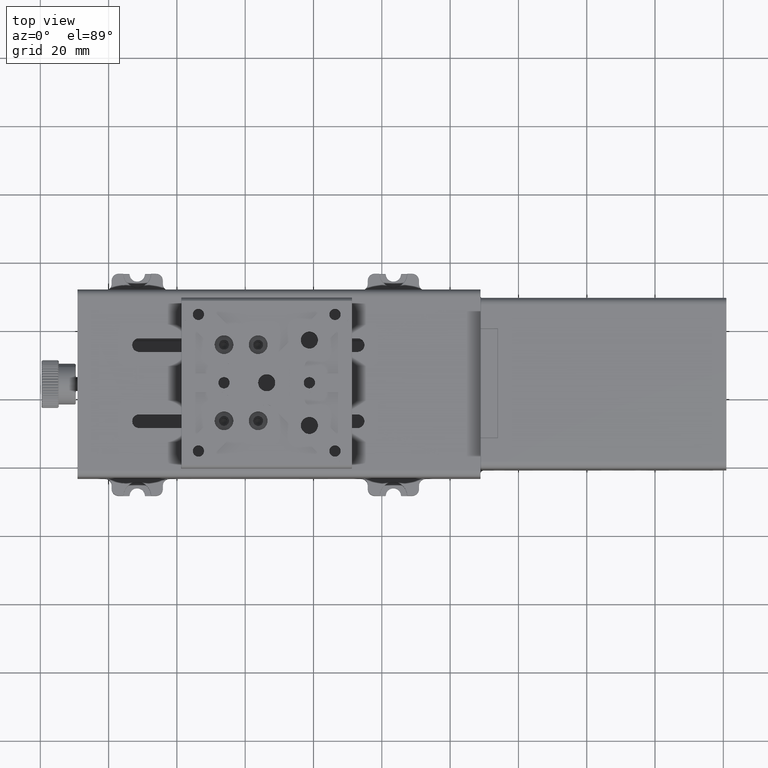
[diagram: clean part render]
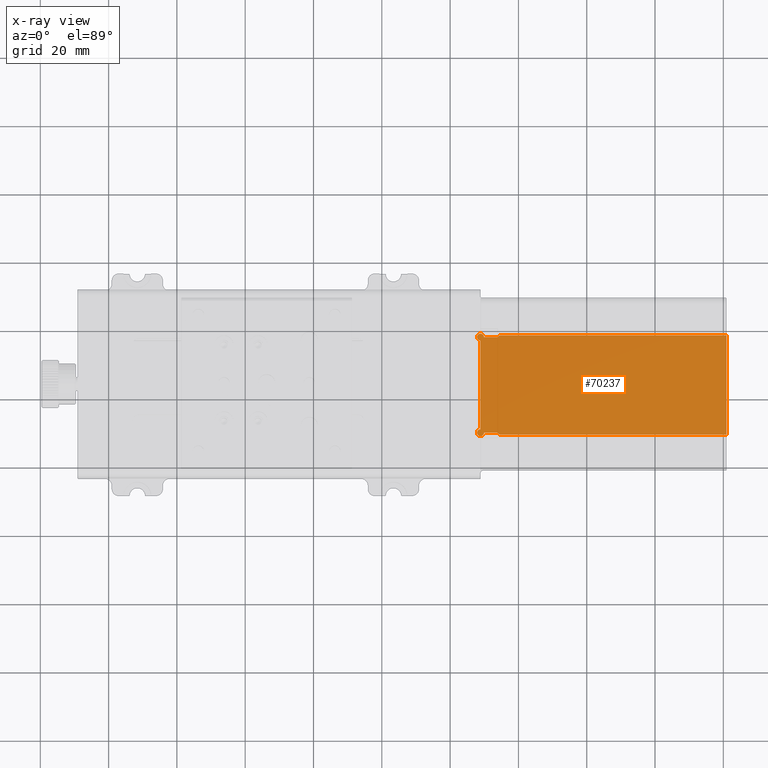
[diagram: x-ray — body ghosted, one internal face saturated and labeled with its STEP entity id]
A machine part, top view, then the same camera in x-ray: the body is ghosted and one INTERNAL B-rep face — a face not visible from any outside direction — is saturated and labeled: STEP entity #70237.
In plain terms, the highlighted planar face has unit normal (0, 0, 1).
Its self-contained STEP definition (entity closure, byte-faithful):
#2690 = CIRCLE ( 'NONE', #51129, 1.000000000000000888 ) ;
#5973 = CARTESIAN_POINT ( 'NONE',  ( 33.88988764044950130, 38.75842696629214856, -3.500000000000000000 ) ) ;
#6095 = VERTEX_POINT ( 'NONE', #48774 ) ;
#6362 = EDGE_CURVE ( 'NONE', #65976, #82180, #25632, .T. ) ;
#7184 = VERTEX_POINT ( 'NONE', #21593 ) ;
#7571 = PLANE ( 'NONE',  #56881 ) ;
#7623 = CARTESIAN_POINT ( 'NONE',  ( 33.88988764044950130, 9.758426966292130800, -3.500000000000000000 ) ) ;
#7977 = CARTESIAN_POINT ( 'NONE',  ( 28.88988764044950130, 10.25842696629212014, -3.500000000000000000 ) ) ;
#8075 = CIRCLE ( 'NONE', #78667, 1.000000000000000888 ) ;
#8946 = DIRECTION ( 'NONE',  ( 1.000000000000000000, 0.000000000000000000, 0.000000000000000000 ) ) ;
#9058 = AXIS2_PLACEMENT_3D ( 'NONE', #67338, #60853, #41335 ) ;
#9267 = DIRECTION ( 'NONE',  ( 1.000000000000000000, 0.000000000000000000, 0.000000000000000000 ) ) ;
#9828 = DIRECTION ( 'NONE',  ( 1.000000000000000000, 3.469446951953610245E-16, 0.000000000000000000 ) ) ;
#11793 = VERTEX_POINT ( 'NONE', #18432 ) ;
#12052 = DIRECTION ( 'NONE',  ( 1.000000000000000000, 0.000000000000000000, 0.000000000000000000 ) ) ;
#13064 = CARTESIAN_POINT ( 'NONE',  ( 34.75591304423389971, 10.75842696629211837, -3.500000000000000000 ) ) ;
#14616 = EDGE_CURVE ( 'NONE', #65366, #56203, #46645, .T. ) ;
#18432 = CARTESIAN_POINT ( 'NONE',  ( 29.88988764044950130, 38.25842696629215567, -3.500000000000000000 ) ) ;
#18827 = CIRCLE ( 'NONE', #67280, 1.000000000000000888 ) ;
#21593 = CARTESIAN_POINT ( 'NONE',  ( 29.88988764044950130, 10.25842696629212014, -3.500000000000000000 ) ) ;
#22815 = LINE ( 'NONE', #81337, #59177 ) ;
#25632 = CIRCLE ( 'NONE', #9058, 1.000000000000000888 ) ;
#26505 = LINE ( 'NONE', #60302, #34410 ) ;
#30676 = ORIENTED_EDGE ( 'NONE', *, *, #82053, .F. ) ;
#30973 = ORIENTED_EDGE ( 'NONE', *, *, #55931, .F. ) ;
#32018 = VECTOR ( 'NONE', #80728, 1000.000000000000000 ) ;
#32311 = ORIENTED_EDGE ( 'NONE', *, *, #14616, .T. ) ;
#32473 = ORIENTED_EDGE ( 'NONE', *, *, #45501, .F. ) ;
#32590 = DIRECTION ( 'NONE',  ( 1.000000000000000000, 0.000000000000000000, 0.000000000000000000 ) ) ;
#34410 = VECTOR ( 'NONE', #79384, 1000.000000000000000 ) ;
#40659 = CARTESIAN_POINT ( 'NONE',  ( 33.88988764044950130, 38.25842696629215567, -3.500000000000000000 ) ) ;
#41335 = DIRECTION ( 'NONE',  ( 1.000000000000000000, 0.000000000000000000, 0.000000000000000000 ) ) ;
#42204 = DIRECTION ( 'NONE',  ( 1.000000000000000000, 0.000000000000000000, 0.000000000000000000 ) ) ;
#42645 = ORIENTED_EDGE ( 'NONE', *, *, #6362, .T. ) ;
#43813 = CARTESIAN_POINT ( 'NONE',  ( 33.88988764044950130, 10.25842696629212014, -3.500000000000000000 ) ) ;
#45501 = EDGE_CURVE ( 'NONE', #7184, #50708, #18827, .T. ) ;
#45884 = CARTESIAN_POINT ( 'NONE',  ( 28.88988764044950130, 38.25842696629215567, -3.500000000000000000 ) ) ;
#46581 = EDGE_LOOP ( 'NONE', ( #30676, #58756, #32473, #67309, #50746, #32311, #30973, #65759, #42645, #60150 ) ) ;
#46645 = LINE ( 'NONE', #7623, #65405 ) ;
#47431 = LINE ( 'NONE', #7977, #81666 ) ;
#47469 = CARTESIAN_POINT ( 'NONE',  ( 34.75591304423389971, 38.75842696629214856, -3.500000000000000000 ) ) ;
#48774 = CARTESIAN_POINT ( 'NONE',  ( 28.88988764044950130, 37.25842696629215567, -3.500000000000000000 ) ) ;
#50552 = EDGE_CURVE ( 'NONE', #7184, #70747, #47431, .T. ) ;
#50708 = VERTEX_POINT ( 'NONE', #66416 ) ;
#50746 = ORIENTED_EDGE ( 'NONE', *, *, #55923, .T. ) ;
#51129 = AXIS2_PLACEMENT_3D ( 'NONE', #45884, #71881, #12052 ) ;
#53275 = EDGE_CURVE ( 'NONE', #6095, #50708, #55129, .T. ) ;
#53948 = DIRECTION ( 'NONE',  ( 0.000000000000000000, 0.000000000000000000, 1.000000000000000000 ) ) ;
#55129 = LINE ( 'NONE', #61248, #32018 ) ;
#55923 = EDGE_CURVE ( 'NONE', #70747, #65366, #8075, .T. ) ;
#55931 = EDGE_CURVE ( 'NONE', #61536, #56203, #26505, .T. ) ;
#56203 = VERTEX_POINT ( 'NONE', #57632 ) ;
#56881 = AXIS2_PLACEMENT_3D ( 'NONE', #75170, #53948, #9267 ) ;
#57632 = CARTESIAN_POINT ( 'NONE',  ( 100.8898876404494018, 9.758426966292130800, -3.500000000000000000 ) ) ;
#58756 = ORIENTED_EDGE ( 'NONE', *, *, #53275, .T. ) ;
#58850 = LINE ( 'NONE', #5973, #68086 ) ;
#59177 = VECTOR ( 'NONE', #9828, 1000.000000000000000 ) ;
#59450 = DIRECTION ( 'NONE',  ( 0.000000000000000000, 0.000000000000000000, 1.000000000000000000 ) ) ;
#60150 = ORIENTED_EDGE ( 'NONE', *, *, #65672, .F. ) ;
#60302 = CARTESIAN_POINT ( 'NONE',  ( 100.8898876404494018, 38.75842696629214856, -3.500000000000000000 ) ) ;
#60505 = DIRECTION ( 'NONE',  ( 1.000000000000000000, 0.000000000000000000, 0.000000000000000000 ) ) ;
#60853 = DIRECTION ( 'NONE',  ( 0.000000000000000000, 0.000000000000000000, 1.000000000000000000 ) ) ;
#61248 = CARTESIAN_POINT ( 'NONE',  ( 28.88988764044950130, 38.25842696629215567, -3.500000000000000000 ) ) ;
#61536 = VERTEX_POINT ( 'NONE', #72315 ) ;
#61822 = CARTESIAN_POINT ( 'NONE',  ( 28.88988764044950130, 10.25842696629212014, -3.500000000000000000 ) ) ;
#65366 = VERTEX_POINT ( 'NONE', #82294 ) ;
#65405 = VECTOR ( 'NONE', #60505, 1000.000000000000000 ) ;
#65672 = EDGE_CURVE ( 'NONE', #11793, #82180, #22815, .T. ) ;
#65759 = ORIENTED_EDGE ( 'NONE', *, *, #85698, .T. ) ;
#65976 = VERTEX_POINT ( 'NONE', #47469 ) ;
#66416 = CARTESIAN_POINT ( 'NONE',  ( 28.88988764044950130, 11.25842696629212014, -3.500000000000000000 ) ) ;
#67280 = AXIS2_PLACEMENT_3D ( 'NONE', #61822, #68333, #8946 ) ;
#67309 = ORIENTED_EDGE ( 'NONE', *, *, #50552, .T. ) ;
#67338 = CARTESIAN_POINT ( 'NONE',  ( 34.75591304423389971, 37.75842696629215567, -3.500000000000000000 ) ) ;
#68086 = VECTOR ( 'NONE', #78339, 1000.000000000000000 ) ;
#68333 = DIRECTION ( 'NONE',  ( 0.000000000000000000, 0.000000000000000000, -1.000000000000000000 ) ) ;
#68657 = FACE_OUTER_BOUND ( 'NONE', #46581, .T. ) ;
#70237 = ADVANCED_FACE ( 'NONE', ( #68657 ), #7571, .T. ) ;
#70747 = VERTEX_POINT ( 'NONE', #43813 ) ;
#71881 = DIRECTION ( 'NONE',  ( 0.000000000000000000, 0.000000000000000000, -1.000000000000000000 ) ) ;
#72315 = CARTESIAN_POINT ( 'NONE',  ( 100.8898876404494018, 38.75842696629214856, -3.500000000000000000 ) ) ;
#75170 = CARTESIAN_POINT ( 'NONE',  ( -89.11011235955059817, 49.25842696629209883, -3.500000000000000000 ) ) ;
#78339 = DIRECTION ( 'NONE',  ( -1.000000000000000000, 0.000000000000000000, 0.000000000000000000 ) ) ;
#78667 = AXIS2_PLACEMENT_3D ( 'NONE', #13064, #59450, #32590 ) ;
#79384 = DIRECTION ( 'NONE',  ( 0.000000000000000000, -1.000000000000000000, 0.000000000000000000 ) ) ;
#80728 = DIRECTION ( 'NONE',  ( 0.000000000000000000, -1.000000000000000000, 0.000000000000000000 ) ) ;
#81337 = CARTESIAN_POINT ( 'NONE',  ( 28.88988764044950130, 38.25842696629215567, -3.500000000000000000 ) ) ;
#81666 = VECTOR ( 'NONE', #42204, 1000.000000000000000 ) ;
#82053 = EDGE_CURVE ( 'NONE', #6095, #11793, #2690, .T. ) ;
#82180 = VERTEX_POINT ( 'NONE', #40659 ) ;
#82294 = CARTESIAN_POINT ( 'NONE',  ( 34.75591304423389971, 9.758426966292130800, -3.500000000000000000 ) ) ;
#85698 = EDGE_CURVE ( 'NONE', #61536, #65976, #58850, .T. ) ;